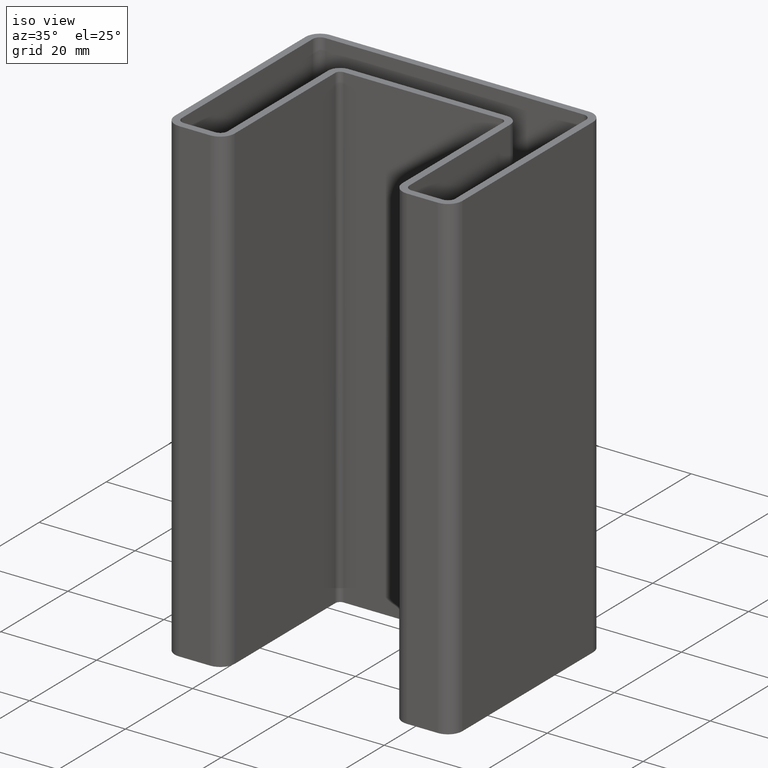
[diagram: clean part render]
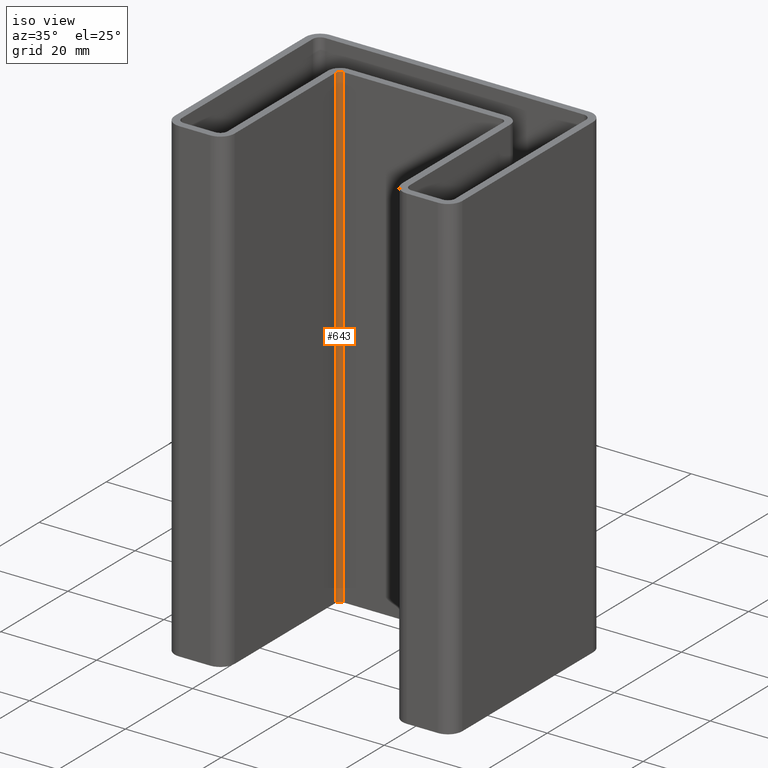
[diagram: same view with one face highlighted and labeled with its STEP entity id]
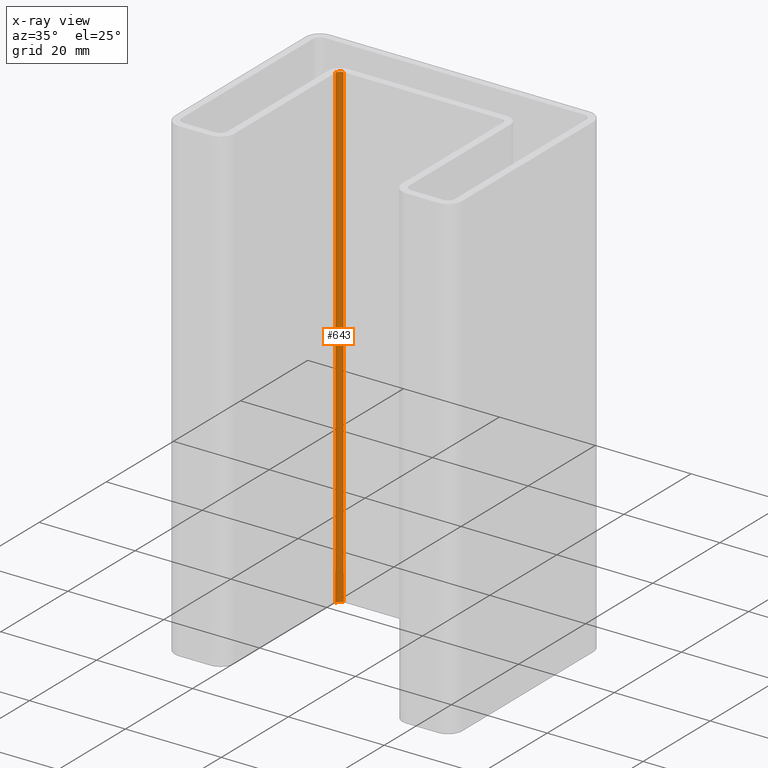
[diagram: x-ray of the same camera — body ghosted, the highlighted face saturated]
A machine part, iso view. The second image highlights one B-rep face of the part: STEP entity #643.
The next image is the same camera in x-ray: the body ghosted, the highlighted face saturated — about 0% of this face is hidden behind the body in this view.
In plain terms, the highlighted cylindrical surface (edge-blend (fillet) strip) has radius 1 mm, axis along (0, 0, -1).
Its self-contained STEP definition (entity closure, byte-faithful):
#20=CYLINDRICAL_SURFACE('',#706,1.);
#48=CIRCLE('',#699,1.);
#52=CIRCLE('',#707,1.);
#116=ORIENTED_EDGE('',*,*,#288,.T.);
#117=ORIENTED_EDGE('',*,*,#304,.T.);
#118=ORIENTED_EDGE('',*,*,#305,.T.);
#119=ORIENTED_EDGE('',*,*,#306,.T.);
#288=EDGE_CURVE('',#384,#383,#48,.T.);
#304=EDGE_CURVE('',#383,#396,#448,.T.);
#305=EDGE_CURVE('',#396,#397,#52,.F.);
#306=EDGE_CURVE('',#397,#384,#449,.F.);
#383=VERTEX_POINT('',#1007);
#384=VERTEX_POINT('',#1009);
#396=VERTEX_POINT('',#1041);
#397=VERTEX_POINT('',#1043);
#448=LINE('',#1040,#512);
#449=LINE('',#1044,#513);
#512=VECTOR('',#825,1000.);
#513=VECTOR('',#828,1000.);
#554=EDGE_LOOP('',(#116,#117,#118,#119));
#590=FACE_BOUND('',#554,.T.);
#643=ADVANCED_FACE('',(#590),#20,.F.);
#699=AXIS2_PLACEMENT_3D('',#1008,#797,#798);
#706=AXIS2_PLACEMENT_3D('',#1039,#823,#824);
#707=AXIS2_PLACEMENT_3D('',#1042,#826,#827);
#797=DIRECTION('',(0.,0.,1.));
#798=DIRECTION('',(1.,0.,0.));
#823=DIRECTION('',(2.72962250941526E-31,0.,-1.));
#824=DIRECTION('',(-1.,0.,-2.72962250941526E-31));
#825=DIRECTION('',(2.72962250941526E-31,0.,-1.));
#826=DIRECTION('',(0.,0.,1.));
#827=DIRECTION('',(1.,0.,0.));
#828=DIRECTION('',(2.72962250941526E-31,0.,-1.));
#1007=CARTESIAN_POINT('',(-17.5,-1.00000000000001,50.6476146399861));
#1008=CARTESIAN_POINT('',(-16.5,-1.,50.6476146399861));
#1009=CARTESIAN_POINT('',(-16.5,0.,50.6476146399861));
#1039=CARTESIAN_POINT('',(-16.5,-1.,50.6476146399861));
#1040=CARTESIAN_POINT('',(-17.5,-1.,50.6476146399861));
#1041=CARTESIAN_POINT('',(-17.5,-1.00000000000001,-49.3523853600139));
#1042=CARTESIAN_POINT('',(-16.5,-1.,-49.3523853600139));
#1043=CARTESIAN_POINT('',(-16.5,0.,-49.3523853600139));
#1044=CARTESIAN_POINT('',(-16.5,0.,50.6476146399861));